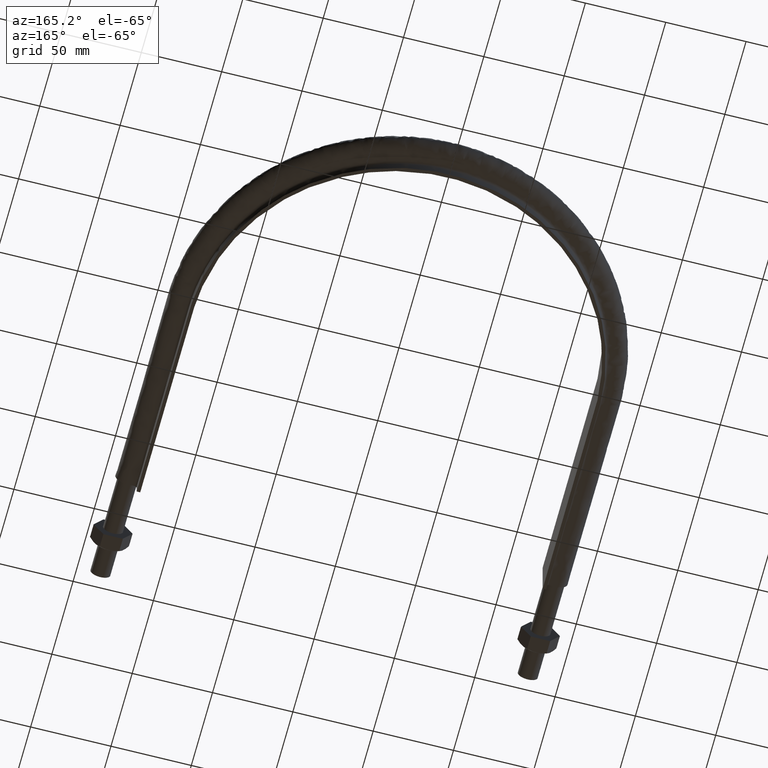
[diagram: clean part render]
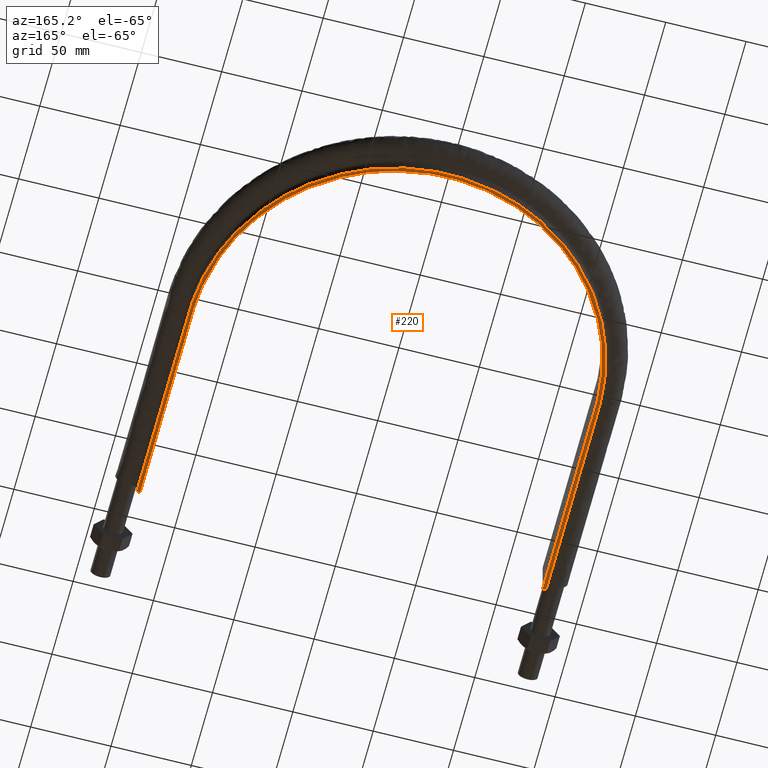
[diagram: same view with one face highlighted and labeled with its STEP entity id]
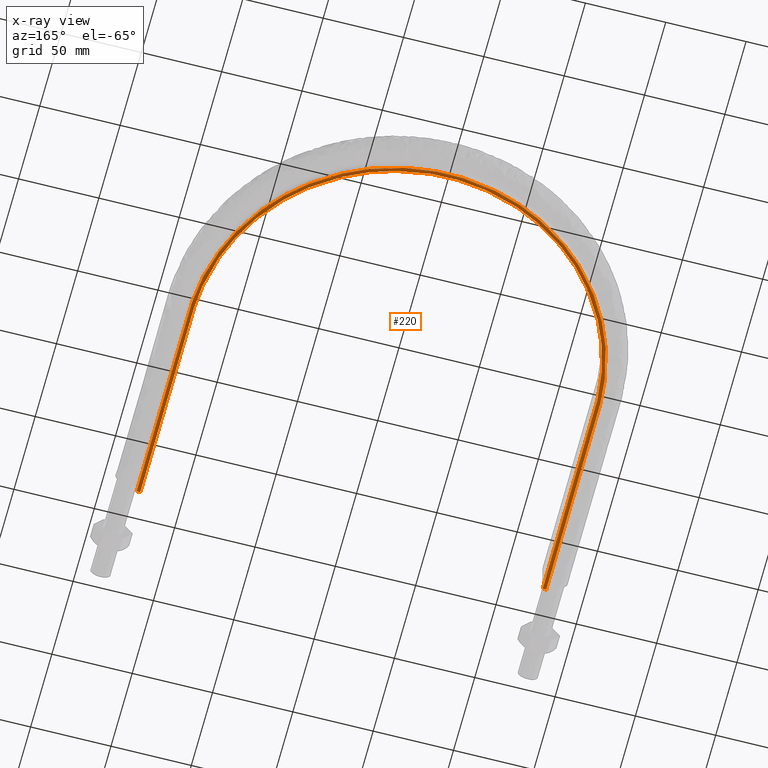
[diagram: x-ray of the same camera — body ghosted, the highlighted face saturated]
A machine part, auxiliary view. The second image highlights one B-rep face of the part: STEP entity #220.
The next image is the same camera in x-ray: the body ghosted, the highlighted face saturated — about 0% of this face is hidden behind the body in this view.
In plain terms, the highlighted planar face has unit normal (0, 0, 1).
Its self-contained STEP definition (entity closure, byte-faithful):
#220 = ADVANCED_FACE( '', ( #265 ), #266, .F. );
#265 = FACE_OUTER_BOUND( '', #373, .T. );
#266 = PLANE( '', #374 );
#373 = EDGE_LOOP( '', ( #1385, #1386, #1387, #1388 ) );
#374 = AXIS2_PLACEMENT_3D( '', #1389, #1390, #1391 );
#1385 = ORIENTED_EDGE( '', *, *, #1654, .F. );
#1386 = ORIENTED_EDGE( '', *, *, #1653, .F. );
#1387 = ORIENTED_EDGE( '', *, *, #1655, .F. );
#1388 = ORIENTED_EDGE( '', *, *, #1656, .F. );
#1389 = CARTESIAN_POINT( '', ( 150.000000000000, 364.500000000000, -15.0000000000000 ) );
#1390 = DIRECTION( '', ( 0.000000000000000, 0.000000000000000, 1.00000000000000 ) );
#1391 = DIRECTION( '', ( 1.22460635382238E-016, 1.00000000000000, 0.000000000000000 ) );
#1653 = EDGE_CURVE( '', #1726, #1721, #1728, .T. );
#1654 = EDGE_CURVE( '', #1721, #1729, #1730, .T. );
#1655 = EDGE_CURVE( '', #1731, #1726, #1732, .T. );
#1656 = EDGE_CURVE( '', #1729, #1731, #1733, .T. );
#1721 = VERTEX_POINT( '', #1845 );
#1726 = VERTEX_POINT( '', #1852 );
#1728 = LINE( '', #1884, #1885 );
#1729 = VERTEX_POINT( '', #1886 );
#1730 = B_SPLINE_CURVE_WITH_KNOTS( '', 3, ( #1887, #1888, #1889, #1890, #1891, #1892, #1893, #1894, #1895, #1896, #1897, #1898, #1899, #1900, #1901, #1902, #1903 ), .UNSPECIFIED., .F., .F., ( 4, 3, 1, 1, 1, 1, 1, 1, 1, 3, 4 ), ( -10.0000000000000, -9.00000000000000, -8.00000000000000, -7.00000000000000, -6.00000000000000, -5.00000000000000, -4.00000000000000, -3.00000000000000, -2.00000000000000, -1.00000000000000, 0.000000000000000 ), .UNSPECIFIED. );
#1731 = VERTEX_POINT( '', #1904 );
#1732 = B_SPLINE_CURVE_WITH_KNOTS( '', 3, ( #1905, #1906, #1907, #1908, #1909, #1910, #1911, #1912, #1913, #1914, #1915, #1916, #1917, #1918, #1919, #1920, #1921 ), .UNSPECIFIED., .F., .F., ( 4, 3, 1, 1, 1, 1, 1, 1, 1, 3, 4 ), ( 0.000000000000000, 1.00000000000000, 2.00000000000000, 3.00000000000000, 4.00000000000000, 5.00000000000000, 6.00000000000000, 7.00000000000000, 8.00000000000000, 9.00000000000000, 10.0000000000000 ), .UNSPECIFIED. );
#1733 = LINE( '', #1922, #1923 );
#1845 = CARTESIAN_POINT( '', ( -125.250000000000, 64.5000000000003, -15.0000000000000 ) );
#1852 = CARTESIAN_POINT( '', ( -127.450000000000, 64.5000000000003, -15.0000000000000 ) );
#1884 = CARTESIAN_POINT( '', ( -150.000000000000, 64.5000000000003, -15.0000000000000 ) );
#1885 = VECTOR( '', #2298, 1000.00000000000 );
#1886 = CARTESIAN_POINT( '', ( 125.250000000000, 64.5000000000000, -15.0000000000005 ) );
#1887 = CARTESIAN_POINT( '', ( -125.250000000000, 64.5000000000001, -15.0000000000002 ) );
#1888 = CARTESIAN_POINT( '', ( -125.250000000000, 105.916666666667, -15.0000000000002 ) );
#1889 = CARTESIAN_POINT( '', ( -125.250000000000, 147.333333333333, -15.0000000000002 ) );
#1890 = CARTESIAN_POINT( '', ( -125.250000000000, 188.750000000000, -15.0000000000002 ) );
#1891 = CARTESIAN_POINT( '', ( -125.250000000000, 205.129602627270, -15.0000000000002 ) );
#1892 = CARTESIAN_POINT( '', ( -118.728466915651, 237.935152350602, -15.0000000000002 ) );
#1893 = CARTESIAN_POINT( '', ( -90.8708344774529, 279.619162254352, -15.0000000000002 ) );
#1894 = CARTESIAN_POINT( '', ( -49.1789412362281, 307.478944693680, -15.0000000000002 ) );
#1895 = CARTESIAN_POINT( '', ( -4.44148010487768E-014, 317.260527653160, -15.0000000000002 ) );
#1896 = CARTESIAN_POINT( '', ( 49.1789412362279, 307.478944693680, -15.0000000000002 ) );
#1897 = CARTESIAN_POINT( '', ( 90.8708344774527, 279.619162254352, -15.0000000000002 ) );
#1898 = CARTESIAN_POINT( '', ( 118.728466915651, 237.935152350602, -15.0000000000002 ) );
#1899 = CARTESIAN_POINT( '', ( 125.250000000000, 205.129602627270, -15.0000000000002 ) );
#1900 = CARTESIAN_POINT( '', ( 125.250000000000, 188.750000000000, -15.0000000000002 ) );
#1901 = CARTESIAN_POINT( '', ( 125.250000000000, 147.333333333333, -15.0000000000002 ) );
#1902 = CARTESIAN_POINT( '', ( 125.250000000000, 105.916666666667, -15.0000000000002 ) );
#1903 = CARTESIAN_POINT( '', ( 125.250000000000, 64.5000000000000, -15.0000000000002 ) );
#1904 = CARTESIAN_POINT( '', ( 127.450000000000, 64.5000000000003, -15.0000000000000 ) );
#1905 = CARTESIAN_POINT( '', ( 127.450000000000, 64.5000000000000, -15.0000000000000 ) );
#1906 = CARTESIAN_POINT( '', ( 127.450000000000, 105.916666666667, -15.0000000000000 ) );
#1907 = CARTESIAN_POINT( '', ( 127.450000000000, 147.333333333333, -15.0000000000000 ) );
#1908 = CARTESIAN_POINT( '', ( 127.450000000000, 188.750000000000, -15.0000000000000 ) );
#1909 = CARTESIAN_POINT( '', ( 127.450000000000, 205.421340766093, -15.0000000000000 ) );
#1910 = CARTESIAN_POINT( '', ( 120.813917033132, 238.797210917867, -15.0000000000000 ) );
#1911 = CARTESIAN_POINT( '', ( 92.4669688954201, 281.215771367909, -15.0000000000000 ) );
#1912 = CARTESIAN_POINT( '', ( 50.0427629585410, 309.564259183849, -15.0000000000000 ) );
#1913 = CARTESIAN_POINT( '', ( 9.63742361333870E-014, 319.517870408075, -15.0000000000000 ) );
#1914 = CARTESIAN_POINT( '', ( -50.0427629585410, 309.564259183849, -15.0000000000000 ) );
#1915 = CARTESIAN_POINT( '', ( -92.4669688954201, 281.215771367909, -15.0000000000000 ) );
#1916 = CARTESIAN_POINT( '', ( -120.813917033132, 238.797210917867, -15.0000000000000 ) );
#1917 = CARTESIAN_POINT( '', ( -127.450000000000, 205.421340766093, -15.0000000000000 ) );
#1918 = CARTESIAN_POINT( '', ( -127.450000000000, 188.750000000000, -15.0000000000000 ) );
#1919 = CARTESIAN_POINT( '', ( -127.450000000000, 147.333333333333, -15.0000000000000 ) );
#1920 = CARTESIAN_POINT( '', ( -127.450000000000, 105.916666666667, -15.0000000000000 ) );
#1921 = CARTESIAN_POINT( '', ( -127.450000000000, 64.5000000000001, -15.0000000000000 ) );
#1922 = CARTESIAN_POINT( '', ( -150.000000000000, 64.5000000000003, -15.0000000000000 ) );
#1923 = VECTOR( '', #2299, 1000.00000000000 );
#2298 = DIRECTION( '', ( 1.00000000000000, -1.22460635382238E-016, 0.000000000000000 ) );
#2299 = DIRECTION( '', ( 1.00000000000000, -1.22460635382238E-016, 0.000000000000000 ) );